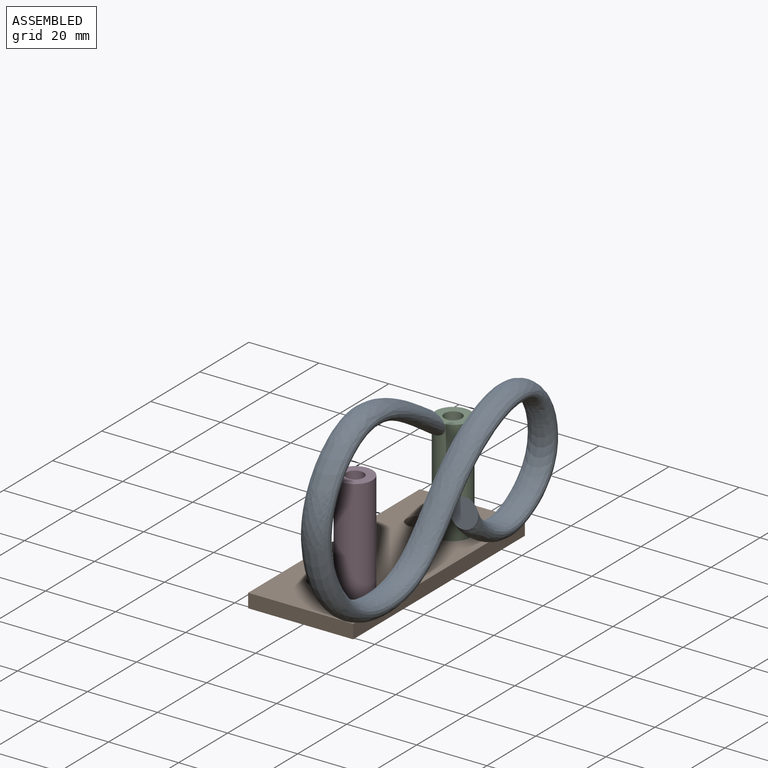
[diagram: assembled view]
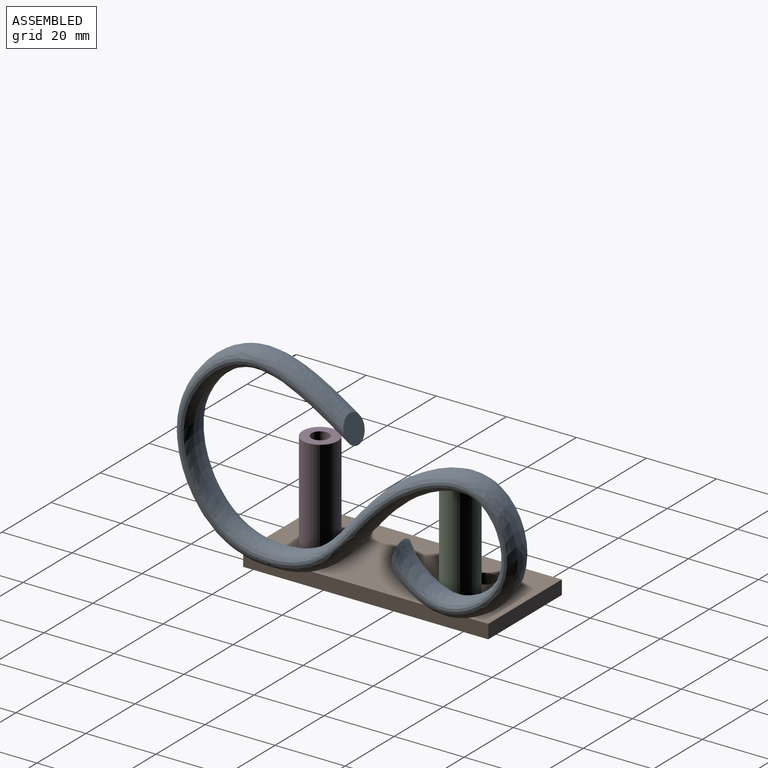
[diagram: assembled view, second angle]
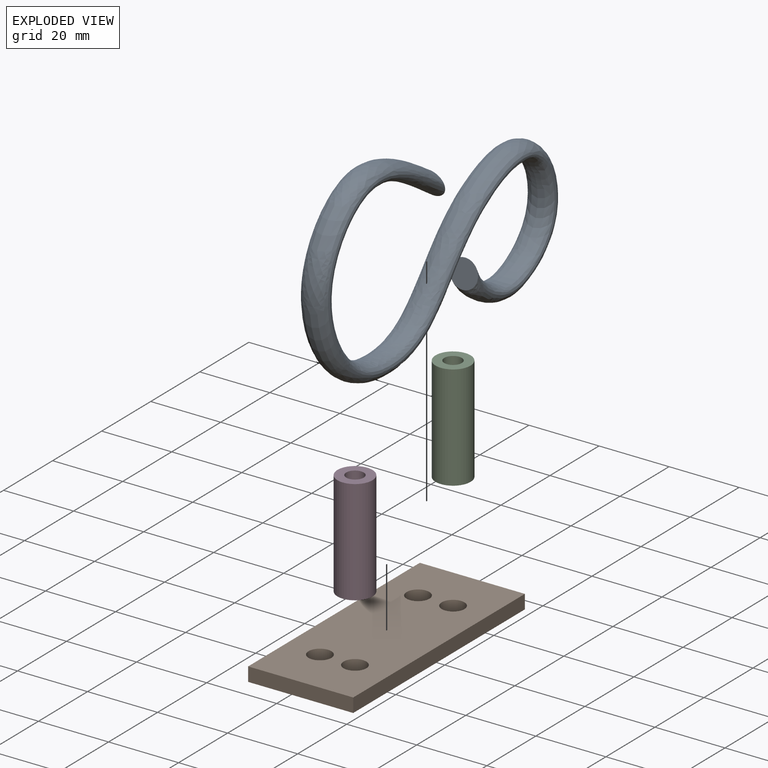
[diagram: exploded view]
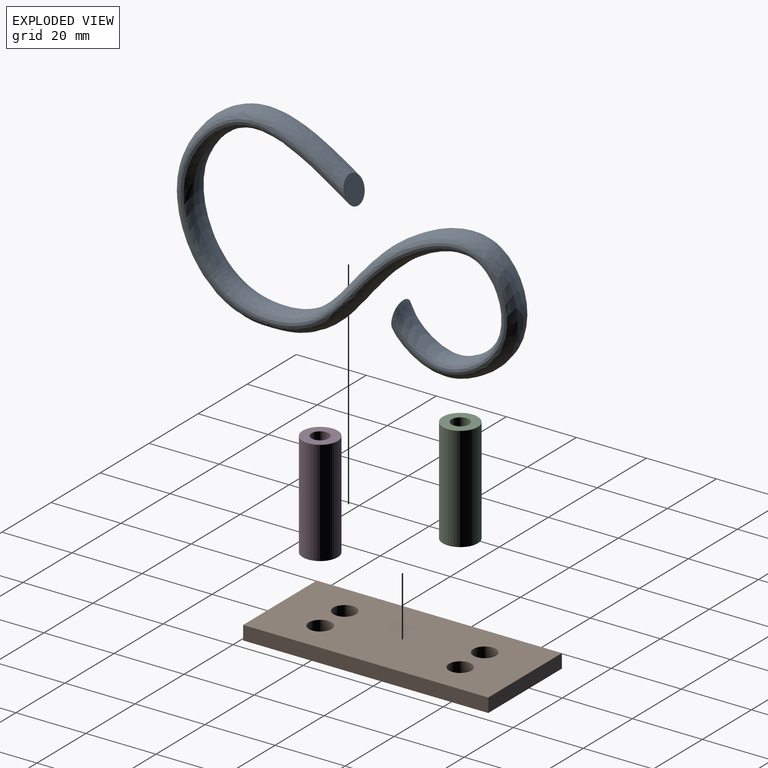
[diagram: exploded view, second angle]
ASSEMBLY  parts=4 mates=3
PART A: 5 faces, bbox 104.3x62x8 mm
  f0: plane 8x7.64mm, normal (-0.95,-0.3,0), area 50.3mm2, adj f2
  f1: plane 8x7.92mm, normal (0.99,-0.14,0), area 50.3mm2, adj f2
  f2: bspline ~104.31x61.95mm, area 4840.1mm2, adj f0,f1,f3,f4
  f3: plane 7.28x4.13mm, normal (0,1,0), area 23.7mm2, adj f2
  f4: plane 17.6x6.64mm, normal (0,1,0), area 95mm2, adj f2
PART B: 10 faces, bbox 30x70x4 mm
  f0: plane 70x4mm, normal (1,0,0), area 280mm2, adj f1,f6,f8,f9
  f1: plane 30x4mm, normal (0,1,0), area 120mm2, adj f0,f2,f8,f9
  f2: plane 70x4mm, normal (-1,0,0), area 280mm2, adj f1,f6,f8,f9
  f3: cylinder r=3.25mm len=6.5mm, axis (0,0,-1), area 81.7mm2, adj f8,f9
  f4: cylinder r=3.25mm len=6.5mm, axis (0,0,-1), area 81.7mm2, adj f8,f9
  f5: cylinder r=3.25mm len=6.5mm, axis (0,0,-1), area 81.7mm2, adj f8,f9
  f6: plane 30x4mm, normal (0,-1,0), area 120mm2, adj f0,f2,f8,f9
  f7: cylinder r=3.25mm len=6.5mm, axis (0,0,-1), area 81.7mm2, adj f8,f9
  f8: plane 70x30mm, normal (0,0,1), area 1967.3mm2, adj f0,f1,f2,f3,f4,f5,f6,f7
  f9: plane 70x30mm, normal (0,0,-1), area 1967.3mm2, adj f0,f1,f2,f3,f4,f5,f6,f7
PART C: 4 faces, bbox 10x10x30 mm
  f0: cylinder r=5mm len=30mm, axis (0,0,-1), area 942.5mm2, adj f1,f2
  f1: plane 10x10mm, normal (0,0,1), area 58.9mm2, adj f0,f3
  f2: plane 10x10mm, normal (0,0,-1), area 58.9mm2, adj f0,f3
  f3: cylinder r=2.5mm len=30mm, axis (0,0,1), area 471.2mm2, adj f1,f2
PART D: same geometry as C
PLACE A rot(axis=(-0.58,0.58,-0.58),120deg) t=(-20.11,-6.98,2.52)mm
PLACE B t=(-35.11,17.81,-28.39)mm fixed
PLACE C t=(-30.11,37.81,-24.39)mm
PLACE D t=(-30.11,-2.19,-24.39)mm
MATE fastened A.f4 <-> B.f8  axis (0,0,-1) through (-20.11,-7.19,-24.39)mm
MATE fastened C.f0 <-> B.f5  axis (0,0,-1) through (-30.11,37.81,-24.39)mm
MATE fastened D.f0 <-> B.f4  axis (0,0,-1) through (-30.11,-2.19,-24.39)mm
